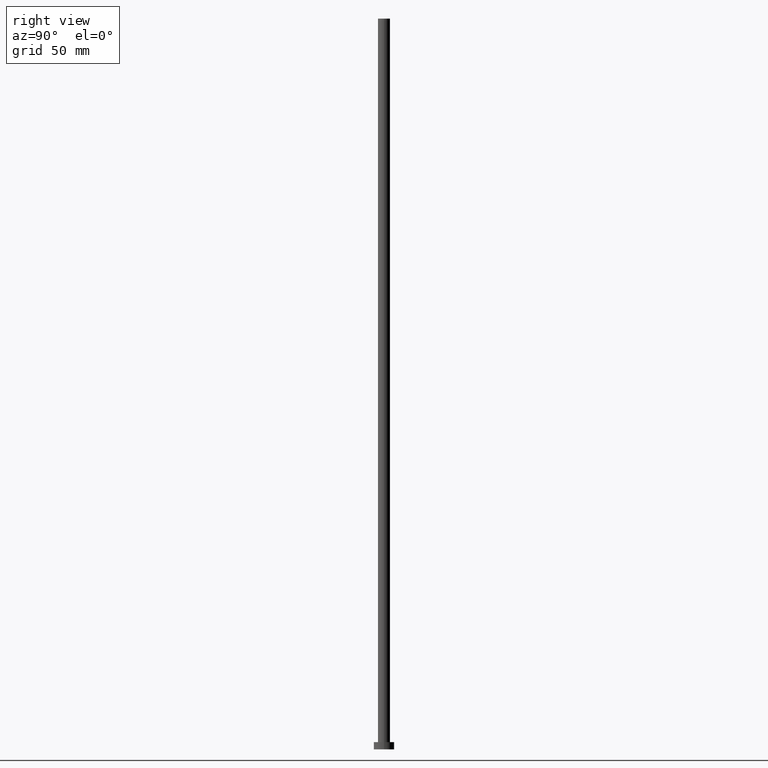
[diagram: clean part render]
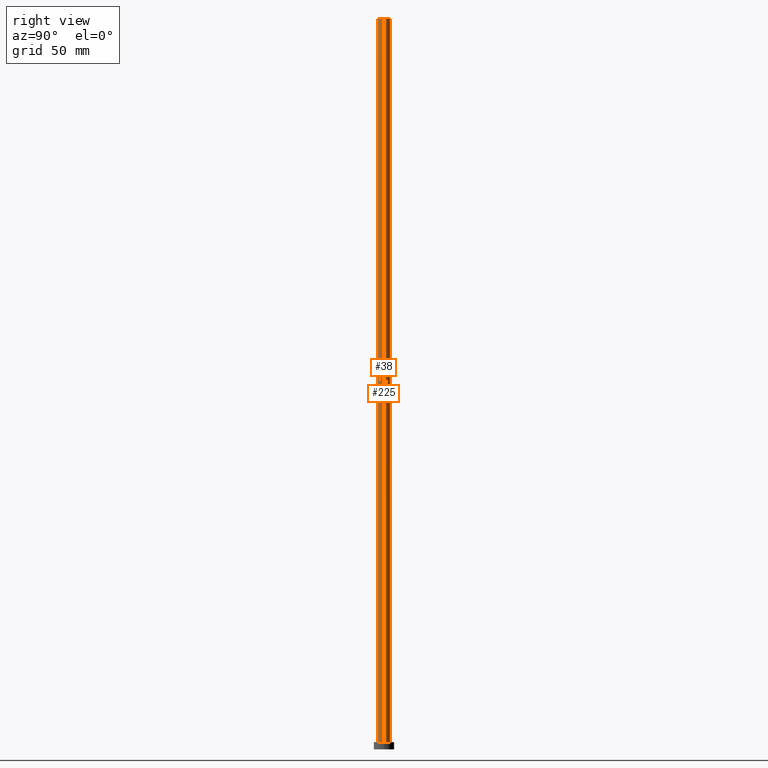
[diagram: same view with one multi-face feature highlighted, each face labeled with its STEP entity id]
A machine part, right view. The highlighted faces form ONE feature: a constant-radius fillet chain: 2 tangent blend faces with common blend radius 4.1 mm. The faces share edges in the B-rep.
Their STEP definitions:
[1] entity #38 (Cylinder):
#2 = DIRECTION ( 'NONE',  ( -0.000000000000000000, -0.000000000000000000, -1.000000000000000000 ) ) ;
#3 = EDGE_CURVE ( 'NONE', #236, #104, #111, .T. ) ;
#5 = CARTESIAN_POINT ( 'NONE',  ( -4.099999999999999645, 0.000000000000000000, 5.000000000000000000 ) ) ;
#8 = EDGE_CURVE ( 'NONE', #139, #104, #251, .T. ) ;
#9 = FACE_OUTER_BOUND ( 'NONE', #205, .T. ) ;
#19 = AXIS2_PLACEMENT_3D ( 'NONE', #164, #244, #128 ) ;
#22 = ORIENTED_EDGE ( 'NONE', *, *, #198, .T. ) ;
#27 = CARTESIAN_POINT ( 'NONE',  ( -4.099999999999999645, 0.000000000000000000, 500.0000000000000000 ) ) ;
#32 = DIRECTION ( 'NONE',  ( 1.000000000000000000, 0.000000000000000000, 0.000000000000000000 ) ) ;
#38 = ADVANCED_FACE ( 'NONE', ( #9 ), #199, .T. ) ;
#46 = VERTEX_POINT ( 'NONE', #160 ) ;
#56 = VECTOR ( 'NONE', #182, 1000.000000000000000 ) ;
#67 = AXIS2_PLACEMENT_3D ( 'NONE', #187, #2, #141 ) ;
#89 = ORIENTED_EDGE ( 'NONE', *, *, #3, .F. ) ;
#104 = VERTEX_POINT ( 'NONE', #206 ) ;
#111 = LINE ( 'NONE', #241, #207 ) ;
#124 = ORIENTED_EDGE ( 'NONE', *, *, #8, .T. ) ;
#125 = LINE ( 'NONE', #27, #56 ) ;
#128 = DIRECTION ( 'NONE',  ( 1.000000000000000000, 0.000000000000000000, 0.000000000000000000 ) ) ;
#131 = CARTESIAN_POINT ( 'NONE',  ( 0.000000000000000000, 0.000000000000000000, 500.0000000000000000 ) ) ;
#134 = AXIS2_PLACEMENT_3D ( 'NONE', #131, #184, #32 ) ;
#139 = VERTEX_POINT ( 'NONE', #5 ) ;
#141 = DIRECTION ( 'NONE',  ( -1.000000000000000000, 0.000000000000000000, 0.000000000000000000 ) ) ;
#159 = ORIENTED_EDGE ( 'NONE', *, *, #166, .F. ) ;
#160 = CARTESIAN_POINT ( 'NONE',  ( -4.099999999999999645, 0.000000000000000000, 500.0000000000000000 ) ) ;
#164 = CARTESIAN_POINT ( 'NONE',  ( 0.000000000000000000, 0.000000000000000000, 5.000000000000000000 ) ) ;
#166 = EDGE_CURVE ( 'NONE', #46, #236, #243, .T. ) ;
#182 = DIRECTION ( 'NONE',  ( -0.000000000000000000, -0.000000000000000000, -1.000000000000000000 ) ) ;
#184 = DIRECTION ( 'NONE',  ( 0.000000000000000000, 0.000000000000000000, 1.000000000000000000 ) ) ;
#187 = CARTESIAN_POINT ( 'NONE',  ( 0.000000000000000000, 0.000000000000000000, 500.0000000000000000 ) ) ;
#198 = EDGE_CURVE ( 'NONE', #46, #139, #125, .T. ) ;
#199 = CYLINDRICAL_SURFACE ( 'NONE', #67, 4.099999999999999645 ) ;
#204 = CARTESIAN_POINT ( 'NONE',  ( 4.099999999999999645, 5.021051876504147385E-16, 500.0000000000000000 ) ) ;
#205 = EDGE_LOOP ( 'NONE', ( #89, #159, #22, #124 ) ) ;
#206 = CARTESIAN_POINT ( 'NONE',  ( 4.099999999999999645, 5.021051876504147385E-16, 5.000000000000000000 ) ) ;
#207 = VECTOR ( 'NONE', #217, 1000.000000000000000 ) ;
#217 = DIRECTION ( 'NONE',  ( -0.000000000000000000, -0.000000000000000000, -1.000000000000000000 ) ) ;
#236 = VERTEX_POINT ( 'NONE', #204 ) ;
#241 = CARTESIAN_POINT ( 'NONE',  ( 4.099999999999999645, 5.021051876504147385E-16, 500.0000000000000000 ) ) ;
#243 = CIRCLE ( 'NONE', #134, 4.099999999999999645 ) ;
#244 = DIRECTION ( 'NONE',  ( 0.000000000000000000, 0.000000000000000000, 1.000000000000000000 ) ) ;
#251 = CIRCLE ( 'NONE', #19, 4.099999999999999645 ) ;
[2] entity #225 (Cylinder):
#3 = EDGE_CURVE ( 'NONE', #236, #104, #111, .T. ) ;
#5 = CARTESIAN_POINT ( 'NONE',  ( -4.099999999999999645, 0.000000000000000000, 5.000000000000000000 ) ) ;
#10 = CARTESIAN_POINT ( 'NONE',  ( 0.000000000000000000, 0.000000000000000000, 500.0000000000000000 ) ) ;
#27 = CARTESIAN_POINT ( 'NONE',  ( -4.099999999999999645, 0.000000000000000000, 500.0000000000000000 ) ) ;
#39 = CARTESIAN_POINT ( 'NONE',  ( 0.000000000000000000, 0.000000000000000000, 5.000000000000000000 ) ) ;
#46 = VERTEX_POINT ( 'NONE', #160 ) ;
#47 = DIRECTION ( 'NONE',  ( -1.000000000000000000, 0.000000000000000000, 0.000000000000000000 ) ) ;
#50 = DIRECTION ( 'NONE',  ( 0.000000000000000000, 0.000000000000000000, 1.000000000000000000 ) ) ;
#56 = VECTOR ( 'NONE', #182, 1000.000000000000000 ) ;
#60 = AXIS2_PLACEMENT_3D ( 'NONE', #39, #150, #169 ) ;
#65 = DIRECTION ( 'NONE',  ( 1.000000000000000000, 0.000000000000000000, 0.000000000000000000 ) ) ;
#69 = ORIENTED_EDGE ( 'NONE', *, *, #3, .T. ) ;
#90 = DIRECTION ( 'NONE',  ( -0.000000000000000000, -0.000000000000000000, -1.000000000000000000 ) ) ;
#104 = VERTEX_POINT ( 'NONE', #206 ) ;
#105 = ORIENTED_EDGE ( 'NONE', *, *, #198, .F. ) ;
#111 = LINE ( 'NONE', #241, #207 ) ;
#125 = LINE ( 'NONE', #27, #56 ) ;
#129 = EDGE_CURVE ( 'NONE', #236, #46, #188, .T. ) ;
#139 = VERTEX_POINT ( 'NONE', #5 ) ;
#146 = CIRCLE ( 'NONE', #60, 4.099999999999999645 ) ;
#150 = DIRECTION ( 'NONE',  ( 0.000000000000000000, 0.000000000000000000, 1.000000000000000000 ) ) ;
#160 = CARTESIAN_POINT ( 'NONE',  ( -4.099999999999999645, 0.000000000000000000, 500.0000000000000000 ) ) ;
#167 = EDGE_LOOP ( 'NONE', ( #180, #69, #200, #105 ) ) ;
#169 = DIRECTION ( 'NONE',  ( 1.000000000000000000, 0.000000000000000000, 0.000000000000000000 ) ) ;
#171 = FACE_OUTER_BOUND ( 'NONE', #167, .T. ) ;
#180 = ORIENTED_EDGE ( 'NONE', *, *, #129, .F. ) ;
#182 = DIRECTION ( 'NONE',  ( -0.000000000000000000, -0.000000000000000000, -1.000000000000000000 ) ) ;
#188 = CIRCLE ( 'NONE', #220, 4.099999999999999645 ) ;
#191 = EDGE_CURVE ( 'NONE', #104, #139, #146, .T. ) ;
#198 = EDGE_CURVE ( 'NONE', #46, #139, #125, .T. ) ;
#200 = ORIENTED_EDGE ( 'NONE', *, *, #191, .T. ) ;
#204 = CARTESIAN_POINT ( 'NONE',  ( 4.099999999999999645, 5.021051876504147385E-16, 500.0000000000000000 ) ) ;
#206 = CARTESIAN_POINT ( 'NONE',  ( 4.099999999999999645, 5.021051876504147385E-16, 5.000000000000000000 ) ) ;
#207 = VECTOR ( 'NONE', #217, 1000.000000000000000 ) ;
#216 = AXIS2_PLACEMENT_3D ( 'NONE', #222, #90, #47 ) ;
#217 = DIRECTION ( 'NONE',  ( -0.000000000000000000, -0.000000000000000000, -1.000000000000000000 ) ) ;
#220 = AXIS2_PLACEMENT_3D ( 'NONE', #10, #50, #65 ) ;
#222 = CARTESIAN_POINT ( 'NONE',  ( 0.000000000000000000, 0.000000000000000000, 500.0000000000000000 ) ) ;
#225 = ADVANCED_FACE ( 'NONE', ( #171 ), #250, .T. ) ;
#236 = VERTEX_POINT ( 'NONE', #204 ) ;
#241 = CARTESIAN_POINT ( 'NONE',  ( 4.099999999999999645, 5.021051876504147385E-16, 500.0000000000000000 ) ) ;
#250 = CYLINDRICAL_SURFACE ( 'NONE', #216, 4.099999999999999645 ) ;